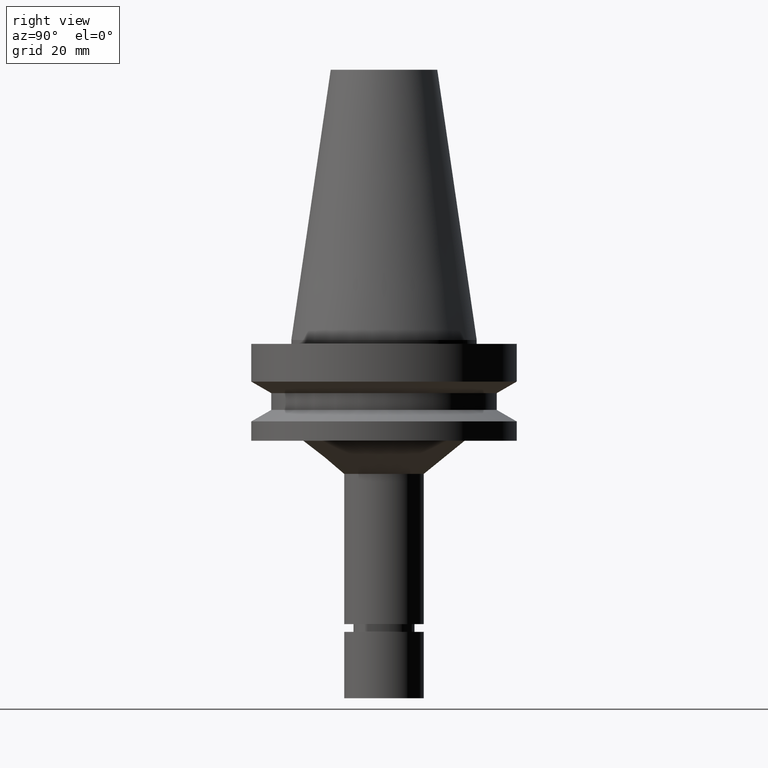
[diagram: clean part render]
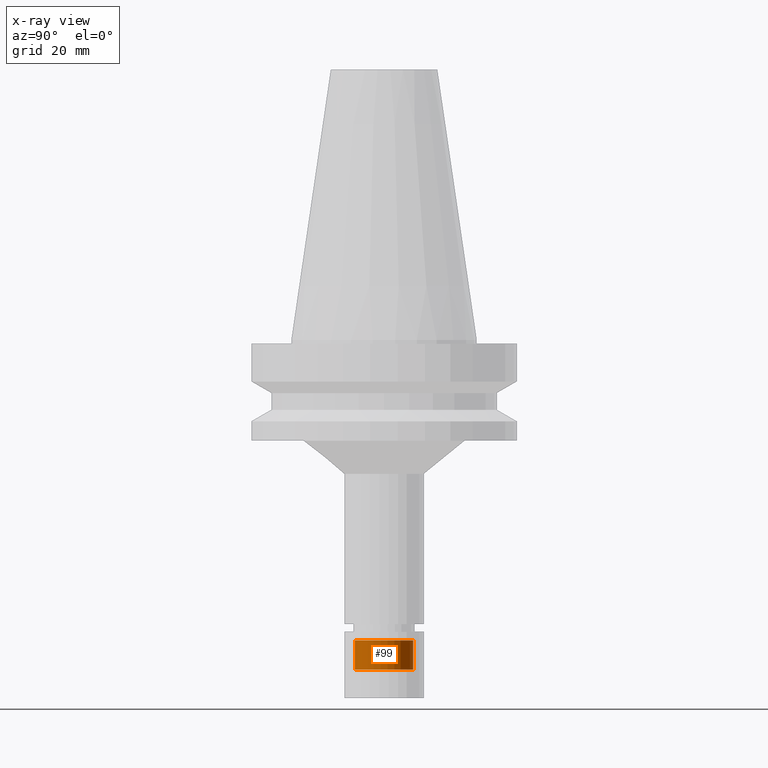
[diagram: x-ray — body ghosted, one internal face saturated and labeled with its STEP entity id]
A machine part, right view, then the same camera in x-ray: the body is ghosted and one INTERNAL B-rep face — a face not visible from any outside direction — is saturated and labeled: STEP entity #99.
In plain terms, the highlighted cylindrical surface (bore or boss wall) has radius 11 mm, axis along (-0, -0, 1).
Its self-contained STEP definition (entity closure, byte-faithful):
#99=ADVANCED_FACE('Unnamed[1]',(#238,#239),#240,.T.);
#145=EDGE_CURVE('Unnamed[1]',#307,#307,#308,.T.);
#177=EDGE_CURVE('Unnamed[1]',#357,#357,#358,.T.);
#238=FACE_BOUND('',#423,.T.);
#239=FACE_BOUND('',#424,.T.);
#240=CYLINDRICAL_SURFACE('',#425,11.0000000000001);
#307=VERTEX_POINT('',#508);
#308=CIRCLE('',#509,11.0000000000002);
#357=VERTEX_POINT('',#571);
#358=CIRCLE('',#572,10.9999999999999);
#423=EDGE_LOOP('',(#622));
#424=EDGE_LOOP('',(#623));
#425=AXIS2_PLACEMENT_3D('',#624,#625,#626);
#508=CARTESIAN_POINT('',(7.61085802635992E-015,11.0000000000003,-124.294744111672));
#509=AXIS2_PLACEMENT_3D('',#696,#697,#698);
#571=CARTESIAN_POINT('',(6.93150088317393E-015,10.9999999999999,-113.199999999998));
#572=AXIS2_PLACEMENT_3D('',#752,#753,#754);
#622=ORIENTED_EDGE('',*,*,#177,.F.);
#623=ORIENTED_EDGE('',*,*,#145,.T.);
#624=CARTESIAN_POINT('',(7.27117945476692E-015,1.63918868633472E-014,-118.747372055835));
#625=DIRECTION('',(-6.12323399573677E-017,-1.52619998477449E-017,1.0));
#626=DIRECTION('',(-5.76168069387336E-033,1.0,1.52619998477449E-017));
#696=CARTESIAN_POINT('',(7.61085802635992E-015,1.64765508548187E-014,-124.294744111672));
#697=DIRECTION('',(-6.12323399573677E-017,-1.52619998477447E-017,1.0));
#698=DIRECTION('',(-5.76168069387326E-033,1.0,1.52619998477447E-017));
#752=CARTESIAN_POINT('',(6.93150088317393E-015,1.63072228718757E-014,-113.199999999998));
#753=DIRECTION('',(-6.12323399573677E-017,-1.52619998477451E-017,1.0));
#754=DIRECTION('',(-5.76168069387753E-033,1.0,1.52619998477451E-017));